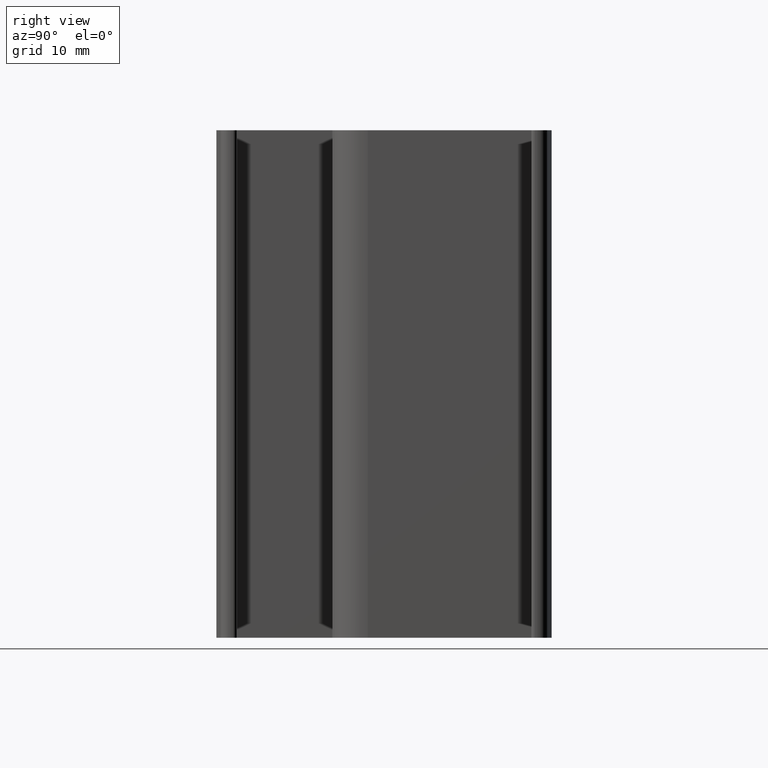
[diagram: clean part render]
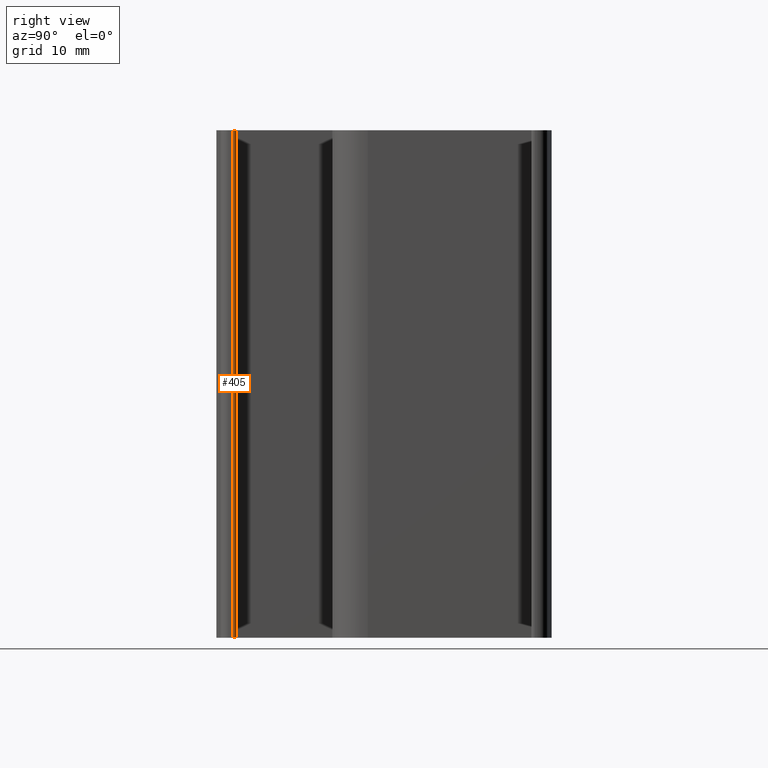
[diagram: same view with one face highlighted and labeled with its STEP entity id]
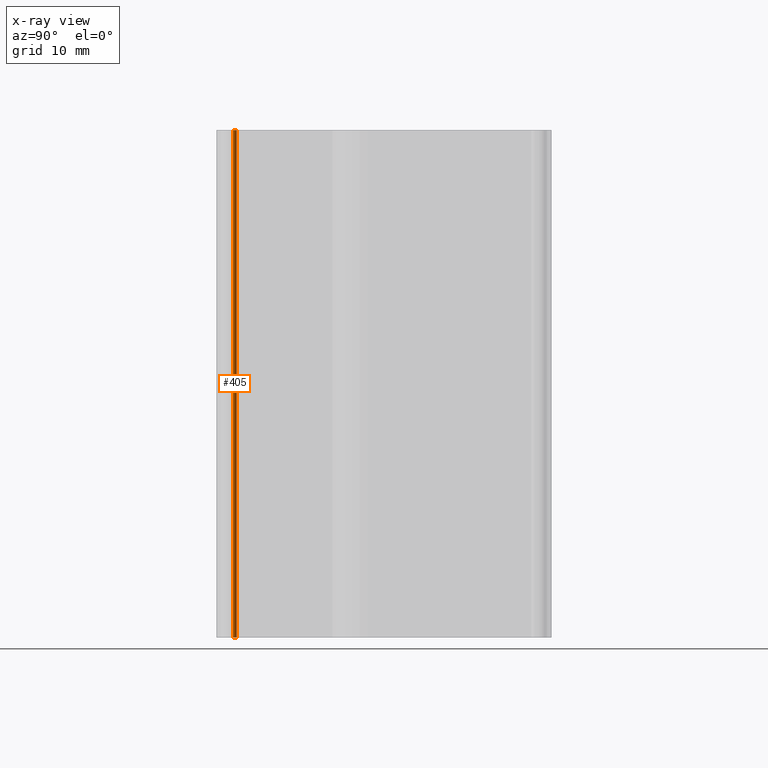
[diagram: x-ray of the same camera — body ghosted, the highlighted face saturated]
A machine part, right view. The second image highlights one B-rep face of the part: STEP entity #405.
The next image is the same camera in x-ray: the body ghosted, the highlighted face saturated — about 0% of this face is hidden behind the body in this view.
In plain terms, the highlighted cylindrical surface (edge-blend (fillet) strip) has radius 0.4 mm, axis along (0, 0, -1).
Its self-contained STEP definition (entity closure, byte-faithful):
#18 = CIRCLE ( 'NONE', #96, 0.4000000000000010200 ) ;
#36 = DIRECTION ( 'NONE',  ( 0.0000000000000000000, 0.0000000000000000000, -1.000000000000000000 ) ) ;
#67 = ORIENTED_EDGE ( 'NONE', *, *, #124, .F. ) ;
#96 = AXIS2_PLACEMENT_3D ( 'NONE', #1153, #815, #786 ) ;
#124 = EDGE_CURVE ( 'NONE', #615, #1268, #18, .T. ) ;
#133 = EDGE_CURVE ( 'NONE', #635, #466, #752, .T. ) ;
#151 = CARTESIAN_POINT ( 'NONE',  ( 18.00009448447043800, 0.3913064018363138800, 50.00000000000000000 ) ) ;
#170 = CARTESIAN_POINT ( 'NONE',  ( 18.40869359816368700, 9.448447043318821200E-005, 50.00000000000000000 ) ) ;
#208 = VECTOR ( 'NONE', #36, 1000.000000000000000 ) ;
#219 = CARTESIAN_POINT ( 'NONE',  ( 18.00009448447043400, 0.3913064018363138800, 0.0000000000000000000 ) ) ;
#405 = ADVANCED_FACE ( 'NONE', ( #988 ), #958, .T. ) ;
#450 = EDGE_CURVE ( 'NONE', #1268, #635, #562, .T. ) ;
#466 = VERTEX_POINT ( 'NONE', #698 ) ;
#562 = LINE ( 'NONE', #860, #826 ) ;
#615 = VERTEX_POINT ( 'NONE', #219 ) ;
#635 = VERTEX_POINT ( 'NONE', #170 ) ;
#641 = EDGE_CURVE ( 'NONE', #466, #615, #1309, .T. ) ;
#698 = CARTESIAN_POINT ( 'NONE',  ( 18.00009448447043400, 0.3913064018363138800, 50.00000000000000000 ) ) ;
#750 = DIRECTION ( 'NONE',  ( -0.0000000000000000000, -0.0000000000000000000, 1.000000000000000000 ) ) ;
#752 = CIRCLE ( 'NONE', #1043, 0.4000000000000010200 ) ;
#776 = ORIENTED_EDGE ( 'NONE', *, *, #641, .F. ) ;
#786 = DIRECTION ( 'NONE',  ( -1.000000000000000000, 0.0000000000000000000, 0.0000000000000000000 ) ) ;
#812 = DIRECTION ( 'NONE',  ( -0.0000000000000000000, -0.0000000000000000000, 1.000000000000000000 ) ) ;
#815 = DIRECTION ( 'NONE',  ( 0.0000000000000000000, 0.0000000000000000000, -1.000000000000000000 ) ) ;
#825 = ORIENTED_EDGE ( 'NONE', *, *, #450, .F. ) ;
#826 = VECTOR ( 'NONE', #812, 1000.000000000000000 ) ;
#860 = CARTESIAN_POINT ( 'NONE',  ( 18.40869359816368700, 9.448447043307979200E-005, 50.00000000000000000 ) ) ;
#876 = CARTESIAN_POINT ( 'NONE',  ( 18.00878808263411900, -0.008599113693252759300, 50.00000000000000000 ) ) ;
#930 = EDGE_LOOP ( 'NONE', ( #1339, #825, #67, #776 ) ) ;
#958 = CYLINDRICAL_SURFACE ( 'NONE', #1081, 0.4000000000000010200 ) ;
#988 = FACE_OUTER_BOUND ( 'NONE', #930, .T. ) ;
#996 = DIRECTION ( 'NONE',  ( 0.0000000000000000000, 0.0000000000000000000, -1.000000000000000000 ) ) ;
#998 = DIRECTION ( 'NONE',  ( -1.000000000000000000, 0.0000000000000000000, 0.0000000000000000000 ) ) ;
#1043 = AXIS2_PLACEMENT_3D ( 'NONE', #876, #750, #1056 ) ;
#1056 = DIRECTION ( 'NONE',  ( -1.000000000000000000, 0.0000000000000000000, 0.0000000000000000000 ) ) ;
#1081 = AXIS2_PLACEMENT_3D ( 'NONE', #1095, #996, #998 ) ;
#1095 = CARTESIAN_POINT ( 'NONE',  ( 18.00878808263411900, -0.008599113693252759300, 50.00000000000000000 ) ) ;
#1139 = CARTESIAN_POINT ( 'NONE',  ( 18.40869359816368700, 9.448447043318821200E-005, 0.0000000000000000000 ) ) ;
#1153 = CARTESIAN_POINT ( 'NONE',  ( 18.00878808263411900, -0.008599113693252759300, 0.0000000000000000000 ) ) ;
#1268 = VERTEX_POINT ( 'NONE', #1139 ) ;
#1309 = LINE ( 'NONE', #151, #208 ) ;
#1339 = ORIENTED_EDGE ( 'NONE', *, *, #133, .F. ) ;